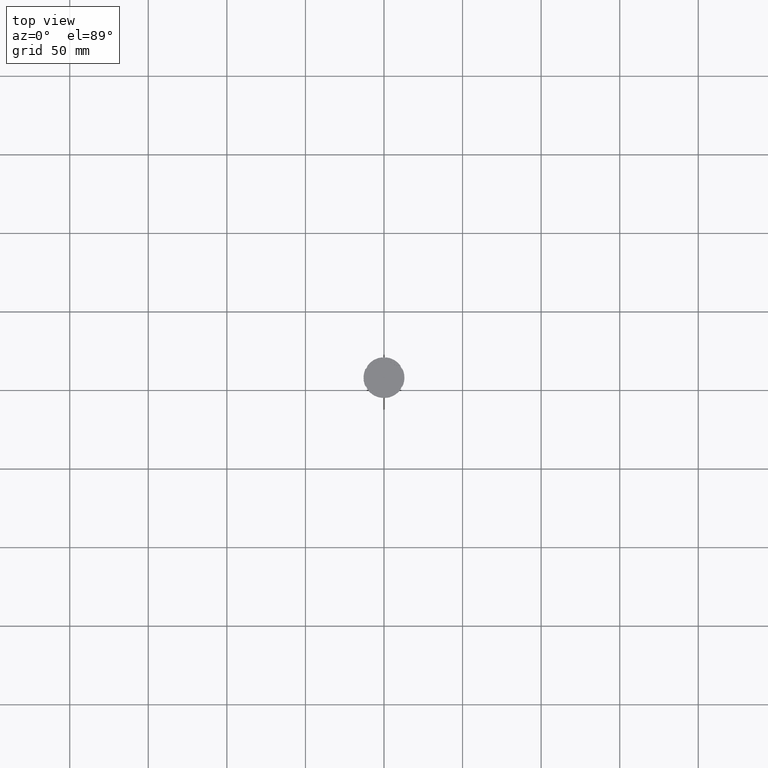
[diagram: clean part render]
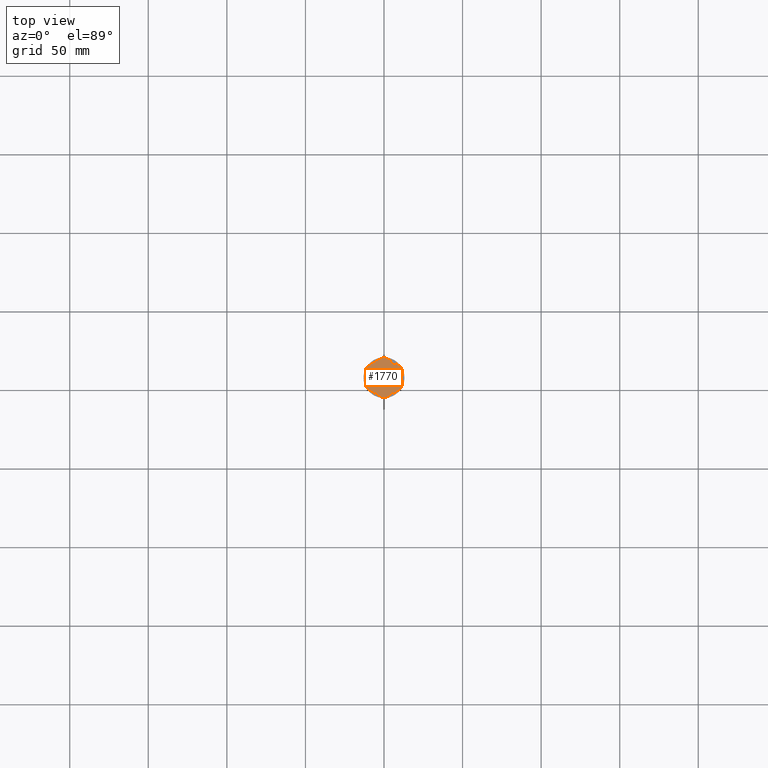
[diagram: same view with one face highlighted and labeled with its STEP entity id]
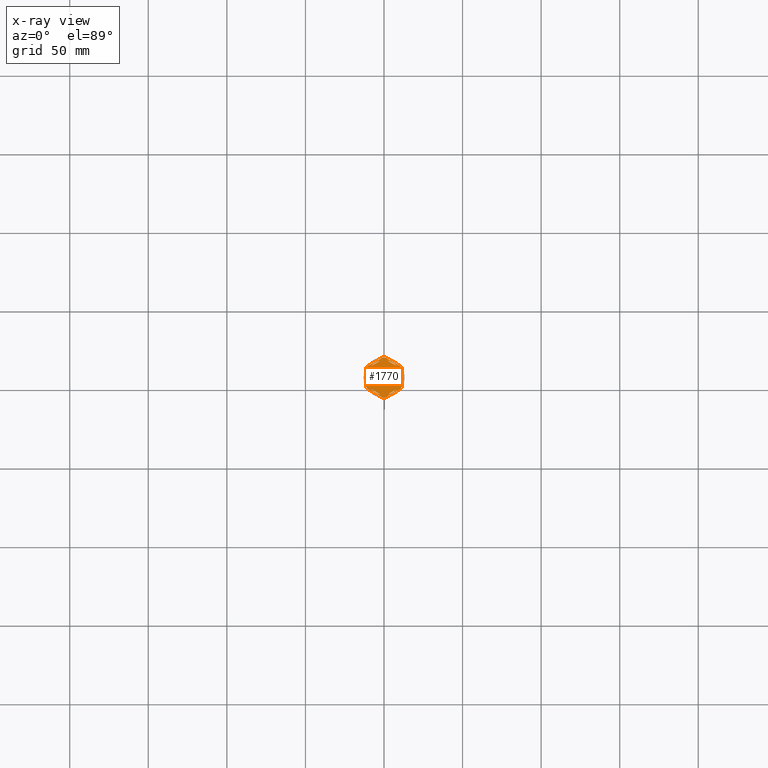
[diagram: x-ray of the same camera — body ghosted, the highlighted face saturated]
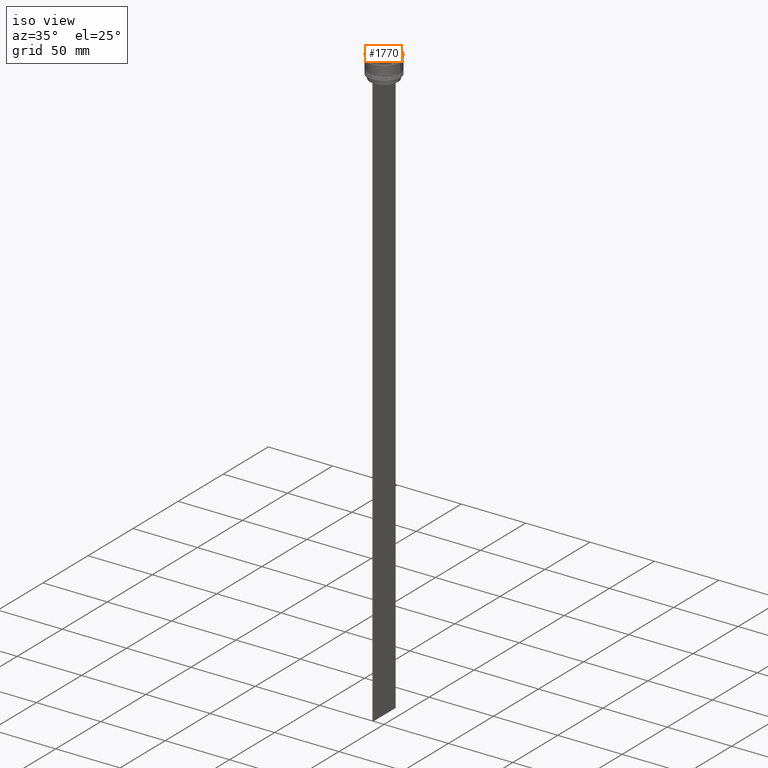
[diagram: same view with one face highlighted and labeled with its STEP entity id]
A machine part, top view. The second image highlights one B-rep face of the part: STEP entity #1770.
The next image is the same camera in x-ray: the body ghosted, the highlighted face saturated — about 0% of this face is hidden behind the body in this view.
A second angle (iso view) of the same face is appended — the face is thin or edge-on in the first view.
In plain terms, the highlighted planar face has unit normal (0, 0, 1).
Its self-contained STEP definition (entity closure, byte-faithful):
#8 = VERTEX_POINT ( 'NONE', #504 ) ;
#9 = FACE_OUTER_BOUND ( 'NONE', #2229, .T. ) ;
#25 = CARTESIAN_POINT ( 'NONE',  ( 8.089454172900138573, 7.453907108661105063, -1.000000000000000888 ) ) ;
#26 = AXIS2_PLACEMENT_3D ( 'NONE', #767, #1885, #585 ) ;
#38 = CARTESIAN_POINT ( 'NONE',  ( 2.410545827099861871, 10.73262637081210791, -1.000000000000000888 ) ) ;
#50 = LINE ( 'NONE', #1115, #2463 ) ;
#53 = DIRECTION ( 'NONE',  ( 1.000000000000000000, 0.000000000000000000, 0.000000000000000000 ) ) ;
#61 = ORIENTED_EDGE ( 'NONE', *, *, #994, .F. ) ;
#76 = DIRECTION ( 'NONE',  ( -0.000000000000000000, -0.000000000000000000, -1.000000000000000000 ) ) ;
#91 = DIRECTION ( 'NONE',  ( 1.000000000000000000, 0.000000000000000000, 0.000000000000000000 ) ) ;
#126 = ORIENTED_EDGE ( 'NONE', *, *, #192, .F. ) ;
#127 = DIRECTION ( 'NONE',  ( 1.000000000000000000, 0.000000000000000000, 0.000000000000000000 ) ) ;
#139 = ORIENTED_EDGE ( 'NONE', *, *, #1096, .F. ) ;
#158 = DIRECTION ( 'NONE',  ( 1.306360520641008153E-16, 1.000000000000000000, 0.000000000000000000 ) ) ;
#164 = AXIS2_PLACEMENT_3D ( 'NONE', #548, #2097, #127 ) ;
#172 = AXIS2_PLACEMENT_3D ( 'NONE', #1184, #2037, #91 ) ;
#173 = DIRECTION ( 'NONE',  ( 0.000000000000000000, 0.000000000000000000, 1.000000000000000000 ) ) ;
#181 = ORIENTED_EDGE ( 'NONE', *, *, #1899, .T. ) ;
#187 = DIRECTION ( 'NONE',  ( 0.8660254037844387076, -0.4999999999999999445, 0.000000000000000000 ) ) ;
#192 = EDGE_CURVE ( 'NONE', #641, #690, #1676, .T. ) ;
#194 = VERTEX_POINT ( 'NONE', #381 ) ;
#209 = FACE_BOUND ( 'NONE', #2722, .T. ) ;
#222 = CARTESIAN_POINT ( 'NONE',  ( -2.410545827099867200, 10.73262637081210613, -1.000000000000000888 ) ) ;
#225 = DIRECTION ( 'NONE',  ( 0.8660254037844385966, 0.4999999999999999445, 0.000000000000000000 ) ) ;
#237 = ORIENTED_EDGE ( 'NONE', *, *, #615, .F. ) ;
#263 = CARTESIAN_POINT ( 'NONE',  ( 0.000000000000000000, 0.000000000000000000, -1.000000000000000000 ) ) ;
#274 = LINE ( 'NONE', #1973, #578 ) ;
#299 = VECTOR ( 'NONE', #158, 1000.000000000000000 ) ;
#310 = CARTESIAN_POINT ( 'NONE',  ( -8.089454172900135021, 7.453907108661106840, -1.000000000000000888 ) ) ;
#316 = CARTESIAN_POINT ( 'NONE',  ( 0.000000000000000000, 13.27905619136138959, -1.000000000000000000 ) ) ;
#326 = DIRECTION ( 'NONE',  ( -1.430775808321104180E-16, -1.000000000000000000, 0.000000000000000000 ) ) ;
#330 = ORIENTED_EDGE ( 'NONE', *, *, #1690, .F. ) ;
#340 = ORIENTED_EDGE ( 'NONE', *, *, #1432, .T. ) ;
#344 = CIRCLE ( 'NONE', #164, 11.00000000000000000 ) ;
#345 = VECTOR ( 'NONE', #2126, 1000.000000000000000 ) ;
#358 = EDGE_CURVE ( 'NONE', #690, #641, #467, .T. ) ;
#361 = ORIENTED_EDGE ( 'NONE', *, *, #919, .F. ) ;
#375 = CARTESIAN_POINT ( 'NONE',  ( 11.49999999999999822, -5.388877434122996135, -1.000000000000000000 ) ) ;
#381 = CARTESIAN_POINT ( 'NONE',  ( -10.49999999999999822, 3.278719262151000624, -1.000000000000000888 ) ) ;
#390 = CARTESIAN_POINT ( 'NONE',  ( 8.089454172900135021, -7.453907108661109504, -1.000000000000000888 ) ) ;
#395 = VERTEX_POINT ( 'NONE', #423 ) ;
#402 = CARTESIAN_POINT ( 'NONE',  ( -10.41690475583121689, 7.264853426459546348, -1.000000000000000000 ) ) ;
#414 = VERTEX_POINT ( 'NONE', #907 ) ;
#416 = FACE_BOUND ( 'NONE', #2134, .T. ) ;
#423 = CARTESIAN_POINT ( 'NONE',  ( 1.083095244168781557, 12.65373086058254160, -1.000000000000000000 ) ) ;
#441 = EDGE_LOOP ( 'NONE', ( #1939, #126 ) ) ;
#455 = DIRECTION ( 'NONE',  ( -0.000000000000000000, -0.000000000000000000, -1.000000000000000000 ) ) ;
#463 = DIRECTION ( 'NONE',  ( 0.000000000000000000, 0.000000000000000000, 1.000000000000000000 ) ) ;
#467 = CIRCLE ( 'NONE', #1470, 11.00000000000000000 ) ;
#504 = CARTESIAN_POINT ( 'NONE',  ( -10.49999999999999822, -3.278719262151000624, -1.000000000000000888 ) ) ;
#548 = CARTESIAN_POINT ( 'NONE',  ( 0.000000000000000000, 0.000000000000000000, -1.000000000000000000 ) ) ;
#550 = ORIENTED_EDGE ( 'NONE', *, *, #1820, .T. ) ;
#564 = DIRECTION ( 'NONE',  ( 1.000000000000000000, 0.000000000000000000, 0.000000000000000000 ) ) ;
#567 = VERTEX_POINT ( 'NONE', #856 ) ;
#570 = ORIENTED_EDGE ( 'NONE', *, *, #1722, .F. ) ;
#576 = ORIENTED_EDGE ( 'NONE', *, *, #1372, .F. ) ;
#577 = CARTESIAN_POINT ( 'NONE',  ( 11.49999999999999822, 5.388877434122992582, -1.000000000000000000 ) ) ;
#578 = VECTOR ( 'NONE', #2642, 1000.000000000000227 ) ;
#580 = CARTESIAN_POINT ( 'NONE',  ( -11.50000000000000000, -5.388877434122992582, -1.000000000000000000 ) ) ;
#585 = DIRECTION ( 'NONE',  ( 1.000000000000000000, -1.776356839400250465E-14, 0.000000000000000000 ) ) ;
#596 = CARTESIAN_POINT ( 'NONE',  ( 10.49999999999999467, 6.062177826491072175, -1.000000000000000888 ) ) ;
#614 = EDGE_CURVE ( 'NONE', #1539, #986, #1765, .T. ) ;
#615 = EDGE_CURVE ( 'NONE', #1928, #8, #883, .T. ) ;
#638 = FACE_BOUND ( 'NONE', #1588, .T. ) ;
#641 = VERTEX_POINT ( 'NONE', #38 ) ;
#647 = LINE ( 'NONE', #2373, #1972 ) ;
#657 = CIRCLE ( 'NONE', #1785, 12.69999999999999929 ) ;
#664 = DIRECTION ( 'NONE',  ( 1.000000000000000000, 0.000000000000000000, -0.000000000000000000 ) ) ;
#690 = VERTEX_POINT ( 'NONE', #25 ) ;
#718 = VERTEX_POINT ( 'NONE', #1756 ) ;
#728 = CARTESIAN_POINT ( 'NONE',  ( 10.41690475583121867, -7.264853426459537467, -1.000000000000000000 ) ) ;
#767 = CARTESIAN_POINT ( 'NONE',  ( 0.000000000000000000, 0.000000000000000000, -1.000000000000000000 ) ) ;
#785 = LINE ( 'NONE', #2489, #1478 ) ;
#822 = VERTEX_POINT ( 'NONE', #580 ) ;
#833 = CARTESIAN_POINT ( 'NONE',  ( -2.602085213965210642E-15, -12.12435565298214080, -1.000000000000000888 ) ) ;
#847 = CARTESIAN_POINT ( 'NONE',  ( -1.083095244168779780, -12.65373086058253982, -1.000000000000000000 ) ) ;
#851 = VERTEX_POINT ( 'NONE', #1819 ) ;
#856 = CARTESIAN_POINT ( 'NONE',  ( -11.50000000000000000, 5.388877434122992582, -1.000000000000000000 ) ) ;
#883 = CIRCLE ( 'NONE', #2058, 11.00000000000000000 ) ;
#884 = CIRCLE ( 'NONE', #1066, 11.00000000000000000 ) ;
#897 = CARTESIAN_POINT ( 'NONE',  ( 0.000000000000000000, 0.000000000000000000, -1.000000000000000000 ) ) ;
#907 = CARTESIAN_POINT ( 'NONE',  ( -1.083095244168783333, 12.65373086058254160, -1.000000000000000000 ) ) ;
#911 = DIRECTION ( 'NONE',  ( 0.000000000000000000, 0.000000000000000000, 1.000000000000000000 ) ) ;
#918 = ORIENTED_EDGE ( 'NONE', *, *, #2476, .F. ) ;
#919 = EDGE_CURVE ( 'NONE', #718, #2111, #1671, .T. ) ;
#932 = DIRECTION ( 'NONE',  ( -0.000000000000000000, -0.000000000000000000, -1.000000000000000000 ) ) ;
#941 = DIRECTION ( 'NONE',  ( 1.000000000000000000, 0.000000000000000000, 0.000000000000000000 ) ) ;
#954 = VERTEX_POINT ( 'NONE', #2355 ) ;
#986 = VERTEX_POINT ( 'NONE', #222 ) ;
#994 = EDGE_CURVE ( 'NONE', #2164, #851, #1682, .T. ) ;
#1020 = ORIENTED_EDGE ( 'NONE', *, *, #1511, .F. ) ;
#1034 = EDGE_CURVE ( 'NONE', #8, #194, #1537, .T. ) ;
#1038 = DIRECTION ( 'NONE',  ( 1.000000000000000000, 0.000000000000000000, 0.000000000000000000 ) ) ;
#1048 = DIRECTION ( 'NONE',  ( -0.000000000000000000, -0.000000000000000000, -1.000000000000000000 ) ) ;
#1066 = AXIS2_PLACEMENT_3D ( 'NONE', #263, #911, #1325 ) ;
#1085 = DIRECTION ( 'NONE',  ( -0.8660254037844387076, -0.4999999999999999445, 0.000000000000000000 ) ) ;
#1096 = EDGE_CURVE ( 'NONE', #986, #1539, #884, .T. ) ;
#1110 = CIRCLE ( 'NONE', #2296, 11.00000000000000000 ) ;
#1115 = CARTESIAN_POINT ( 'NONE',  ( -11.50000000000000000, 6.639528095680691244, -1.000000000000000000 ) ) ;
#1164 = EDGE_CURVE ( 'NONE', #2481, #2630, #657, .T. ) ;
#1180 = DIRECTION ( 'NONE',  ( -0.8660254037844385966, -0.5000000000000001110, 0.000000000000000000 ) ) ;
#1184 = CARTESIAN_POINT ( 'NONE',  ( 0.000000000000000000, 0.000000000000000000, -1.000000000000000000 ) ) ;
#1208 = EDGE_LOOP ( 'NONE', ( #570, #61 ) ) ;
#1221 = ORIENTED_EDGE ( 'NONE', *, *, #1034, .F. ) ;
#1234 = DIRECTION ( 'NONE',  ( 1.000000000000000000, 0.000000000000000000, 0.000000000000000000 ) ) ;
#1260 = EDGE_CURVE ( 'NONE', #414, #2169, #1632, .T. ) ;
#1264 = CARTESIAN_POINT ( 'NONE',  ( 0.000000000000000000, 0.000000000000000000, -1.000000000000000000 ) ) ;
#1284 = VERTEX_POINT ( 'NONE', #728 ) ;
#1287 = CARTESIAN_POINT ( 'NONE',  ( 0.000000000000000000, 0.000000000000000000, -1.000000000000000000 ) ) ;
#1292 = VECTOR ( 'NONE', #1317, 1000.000000000000000 ) ;
#1296 = VECTOR ( 'NONE', #1180, 1000.000000000000114 ) ;
#1297 = CIRCLE ( 'NONE', #2113, 11.00000000000000000 ) ;
#1317 = DIRECTION ( 'NONE',  ( 0.8660254037844385966, 0.5000000000000001110, -0.000000000000000000 ) ) ;
#1325 = DIRECTION ( 'NONE',  ( 1.000000000000000000, 0.000000000000000000, 0.000000000000000000 ) ) ;
#1329 = DIRECTION ( 'NONE',  ( 1.000000000000000000, 0.000000000000000000, 0.000000000000000000 ) ) ;
#1341 = ORIENTED_EDGE ( 'NONE', *, *, #2315, .F. ) ;
#1351 = EDGE_LOOP ( 'NONE', ( #139, #2140 ) ) ;
#1370 = DIRECTION ( 'NONE',  ( 0.000000000000000000, 0.000000000000000000, 1.000000000000000000 ) ) ;
#1371 = CARTESIAN_POINT ( 'NONE',  ( -10.41690475583121334, -7.264853426459548125, -1.000000000000000000 ) ) ;
#1372 = EDGE_CURVE ( 'NONE', #954, #1938, #785, .T. ) ;
#1411 = CARTESIAN_POINT ( 'NONE',  ( -8.089454172900133244, -7.453907108661111280, -1.000000000000000888 ) ) ;
#1417 = LINE ( 'NONE', #2073, #299 ) ;
#1428 = VECTOR ( 'NONE', #2760, 1000.000000000000000 ) ;
#1432 = EDGE_CURVE ( 'NONE', #2054, #2095, #1417, .T. ) ;
#1443 = ORIENTED_EDGE ( 'NONE', *, *, #1718, .F. ) ;
#1469 = ORIENTED_EDGE ( 'NONE', *, *, #2521, .F. ) ;
#1470 = AXIS2_PLACEMENT_3D ( 'NONE', #897, #463, #53 ) ;
#1478 = VECTOR ( 'NONE', #326, 1000.000000000000000 ) ;
#1489 = PLANE ( 'NONE',  #2782 ) ;
#1507 = CARTESIAN_POINT ( 'NONE',  ( -10.49999999999999822, -6.062177826491068622, -1.000000000000000888 ) ) ;
#1511 = EDGE_CURVE ( 'NONE', #1519, #822, #2377, .T. ) ;
#1519 = VERTEX_POINT ( 'NONE', #1371 ) ;
#1537 = LINE ( 'NONE', #1990, #2195 ) ;
#1539 = VERTEX_POINT ( 'NONE', #310 ) ;
#1540 = CARTESIAN_POINT ( 'NONE',  ( 10.49999999999999467, -3.278719262151014835, -1.000000000000000888 ) ) ;
#1551 = CARTESIAN_POINT ( 'NONE',  ( 0.000000000000000000, 0.000000000000000000, -1.000000000000000000 ) ) ;
#1588 = EDGE_LOOP ( 'NONE', ( #918, #361 ) ) ;
#1610 = AXIS2_PLACEMENT_3D ( 'NONE', #1264, #1048, #1909 ) ;
#1632 = LINE ( 'NONE', #316, #1296 ) ;
#1633 = EDGE_CURVE ( 'NONE', #1938, #954, #344, .T. ) ;
#1660 = CIRCLE ( 'NONE', #26, 12.69999999999999929 ) ;
#1671 = LINE ( 'NONE', #1507, #1428 ) ;
#1676 = LINE ( 'NONE', #596, #2502 ) ;
#1682 = LINE ( 'NONE', #833, #2108 ) ;
#1690 = EDGE_CURVE ( 'NONE', #194, #1928, #1297, .T. ) ;
#1698 = FACE_BOUND ( 'NONE', #441, .T. ) ;
#1718 = EDGE_CURVE ( 'NONE', #2518, #2095, #1660, .T. ) ;
#1722 = EDGE_CURVE ( 'NONE', #851, #2164, #1110, .T. ) ;
#1756 = CARTESIAN_POINT ( 'NONE',  ( -2.410545827099876082, -10.73262637081210435, -1.000000000000000888 ) ) ;
#1765 = LINE ( 'NONE', #1981, #1292 ) ;
#1770 = ADVANCED_FACE ( 'NONE', ( #1698, #209, #1920, #638, #416, #1953, #9 ), #1489, .T. ) ;
#1776 = CARTESIAN_POINT ( 'NONE',  ( -11.00000000000000000, 0.000000000000000000, -1.000000000000000000 ) ) ;
#1785 = AXIS2_PLACEMENT_3D ( 'NONE', #2020, #76, #941 ) ;
#1796 = AXIS2_PLACEMENT_3D ( 'NONE', #1958, #455, #1988 ) ;
#1797 = DIRECTION ( 'NONE',  ( 1.000000000000000000, 7.105427357601001859E-15, 0.000000000000000000 ) ) ;
#1818 = DIRECTION ( 'NONE',  ( 0.000000000000000000, 0.000000000000000000, 1.000000000000000000 ) ) ;
#1819 = CARTESIAN_POINT ( 'NONE',  ( 2.410545827099865868, -10.73262637081210791, -1.000000000000000888 ) ) ;
#1820 = EDGE_CURVE ( 'NONE', #2518, #395, #2580, .T. ) ;
#1822 = EDGE_CURVE ( 'NONE', #2481, #1284, #647, .T. ) ;
#1860 = EDGE_CURVE ( 'NONE', #414, #395, #2198, .T. ) ;
#1885 = DIRECTION ( 'NONE',  ( -0.000000000000000000, -0.000000000000000000, -1.000000000000000000 ) ) ;
#1899 = EDGE_CURVE ( 'NONE', #567, #822, #50, .T. ) ;
#1909 = DIRECTION ( 'NONE',  ( 1.000000000000000000, 1.243449787580175325E-14, 0.000000000000000000 ) ) ;
#1920 = FACE_BOUND ( 'NONE', #1208, .T. ) ;
#1928 = VERTEX_POINT ( 'NONE', #1776 ) ;
#1938 = VERTEX_POINT ( 'NONE', #1540 ) ;
#1939 = ORIENTED_EDGE ( 'NONE', *, *, #358, .F. ) ;
#1953 = FACE_BOUND ( 'NONE', #1351, .T. ) ;
#1958 = CARTESIAN_POINT ( 'NONE',  ( 0.000000000000000000, 0.000000000000000000, -1.000000000000000000 ) ) ;
#1962 = ORIENTED_EDGE ( 'NONE', *, *, #1260, .T. ) ;
#1972 = VECTOR ( 'NONE', #225, 1000.000000000000114 ) ;
#1973 = CARTESIAN_POINT ( 'NONE',  ( -11.50000000000000000, -6.639528095680696573, -1.000000000000000000 ) ) ;
#1981 = CARTESIAN_POINT ( 'NONE',  ( -1.734723475976807094E-15, 12.12435565298214080, -1.000000000000000888 ) ) ;
#1988 = DIRECTION ( 'NONE',  ( 1.000000000000000000, 0.000000000000000000, 0.000000000000000000 ) ) ;
#1990 = CARTESIAN_POINT ( 'NONE',  ( -10.49999999999999822, 6.062177826491068622, -1.000000000000000888 ) ) ;
#1993 = DIRECTION ( 'NONE',  ( 0.000000000000000000, -1.000000000000000000, 0.000000000000000000 ) ) ;
#2020 = CARTESIAN_POINT ( 'NONE',  ( 0.000000000000000000, 0.000000000000000000, -1.000000000000000000 ) ) ;
#2026 = AXIS2_PLACEMENT_3D ( 'NONE', #2686, #1818, #1234 ) ;
#2037 = DIRECTION ( 'NONE',  ( -0.000000000000000000, -0.000000000000000000, -1.000000000000000000 ) ) ;
#2054 = VERTEX_POINT ( 'NONE', #375 ) ;
#2058 = AXIS2_PLACEMENT_3D ( 'NONE', #1551, #1370, #1329 ) ;
#2072 = CIRCLE ( 'NONE', #2026, 11.00000000000000000 ) ;
#2073 = CARTESIAN_POINT ( 'NONE',  ( 11.49999999999999822, -6.639528095680694797, -1.000000000000000000 ) ) ;
#2095 = VERTEX_POINT ( 'NONE', #577 ) ;
#2097 = DIRECTION ( 'NONE',  ( 0.000000000000000000, 0.000000000000000000, 1.000000000000000000 ) ) ;
#2108 = VECTOR ( 'NONE', #1085, 999.9999999999998863 ) ;
#2111 = VERTEX_POINT ( 'NONE', #1411 ) ;
#2113 = AXIS2_PLACEMENT_3D ( 'NONE', #2695, #2742, #564 ) ;
#2126 = DIRECTION ( 'NONE',  ( -0.8660254037844388186, 0.4999999999999997224, 0.000000000000000000 ) ) ;
#2134 = EDGE_LOOP ( 'NONE', ( #330, #1221, #237 ) ) ;
#2140 = ORIENTED_EDGE ( 'NONE', *, *, #614, .F. ) ;
#2156 = AXIS2_PLACEMENT_3D ( 'NONE', #2191, #932, #1797 ) ;
#2164 = VERTEX_POINT ( 'NONE', #390 ) ;
#2169 = VERTEX_POINT ( 'NONE', #402 ) ;
#2191 = CARTESIAN_POINT ( 'NONE',  ( 0.000000000000000000, 0.000000000000000000, -1.000000000000000000 ) ) ;
#2195 = VECTOR ( 'NONE', #2397, 1000.000000000000000 ) ;
#2198 = CIRCLE ( 'NONE', #1610, 12.69999999999999929 ) ;
#2204 = ORIENTED_EDGE ( 'NONE', *, *, #1164, .F. ) ;
#2229 = EDGE_LOOP ( 'NONE', ( #340, #1443, #550, #2570, #1962, #1341, #181, #1020, #2579, #2204, #2700, #1469 ) ) ;
#2296 = AXIS2_PLACEMENT_3D ( 'NONE', #2532, #173, #1038 ) ;
#2315 = EDGE_CURVE ( 'NONE', #567, #2169, #2691, .T. ) ;
#2355 = CARTESIAN_POINT ( 'NONE',  ( 10.49999999999999467, 3.278719262151012170, -1.000000000000000888 ) ) ;
#2373 = CARTESIAN_POINT ( 'NONE',  ( 5.612359739892467248E-18, -13.27905619136138959, -1.000000000000000000 ) ) ;
#2377 = CIRCLE ( 'NONE', #2156, 12.69999999999999929 ) ;
#2388 = DIRECTION ( 'NONE',  ( 0.000000000000000000, 0.000000000000000000, 1.000000000000000000 ) ) ;
#2390 = EDGE_CURVE ( 'NONE', #1519, #2630, #274, .T. ) ;
#2397 = DIRECTION ( 'NONE',  ( 0.000000000000000000, 1.000000000000000000, 0.000000000000000000 ) ) ;
#2463 = VECTOR ( 'NONE', #1993, 1000.000000000000000 ) ;
#2476 = EDGE_CURVE ( 'NONE', #2111, #718, #2072, .T. ) ;
#2481 = VERTEX_POINT ( 'NONE', #2484 ) ;
#2484 = CARTESIAN_POINT ( 'NONE',  ( 1.083095244168774673, -12.65373086058253982, -1.000000000000000000 ) ) ;
#2489 = CARTESIAN_POINT ( 'NONE',  ( 10.49999999999999289, -6.062177826491073063, -1.000000000000000888 ) ) ;
#2502 = VECTOR ( 'NONE', #187, 999.9999999999998863 ) ;
#2518 = VERTEX_POINT ( 'NONE', #2692 ) ;
#2521 = EDGE_CURVE ( 'NONE', #2054, #1284, #2741, .T. ) ;
#2532 = CARTESIAN_POINT ( 'NONE',  ( 0.000000000000000000, 0.000000000000000000, -1.000000000000000000 ) ) ;
#2570 = ORIENTED_EDGE ( 'NONE', *, *, #1860, .F. ) ;
#2571 = CARTESIAN_POINT ( 'NONE',  ( 11.50000000000000000, 6.639528095680698350, -1.000000000000000000 ) ) ;
#2579 = ORIENTED_EDGE ( 'NONE', *, *, #2390, .T. ) ;
#2580 = LINE ( 'NONE', #2571, #345 ) ;
#2630 = VERTEX_POINT ( 'NONE', #847 ) ;
#2642 = DIRECTION ( 'NONE',  ( 0.8660254037844387076, -0.4999999999999997780, 0.000000000000000000 ) ) ;
#2686 = CARTESIAN_POINT ( 'NONE',  ( 0.000000000000000000, 0.000000000000000000, -1.000000000000000000 ) ) ;
#2691 = CIRCLE ( 'NONE', #1796, 12.69999999999999929 ) ;
#2692 = CARTESIAN_POINT ( 'NONE',  ( 10.41690475583121156, 7.264853426459550789, -1.000000000000000000 ) ) ;
#2695 = CARTESIAN_POINT ( 'NONE',  ( 0.000000000000000000, 0.000000000000000000, -1.000000000000000000 ) ) ;
#2700 = ORIENTED_EDGE ( 'NONE', *, *, #1822, .T. ) ;
#2722 = EDGE_LOOP ( 'NONE', ( #2784, #576 ) ) ;
#2741 = CIRCLE ( 'NONE', #172, 12.69999999999999929 ) ;
#2742 = DIRECTION ( 'NONE',  ( 0.000000000000000000, 0.000000000000000000, 1.000000000000000000 ) ) ;
#2760 = DIRECTION ( 'NONE',  ( -0.8660254037844384856, 0.5000000000000002220, 0.000000000000000000 ) ) ;
#2782 = AXIS2_PLACEMENT_3D ( 'NONE', #1287, #2388, #664 ) ;
#2784 = ORIENTED_EDGE ( 'NONE', *, *, #1633, .F. ) ;